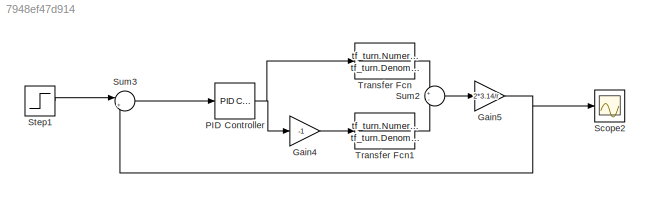
MODEL slx_7948ef47d914
KIND model
CONFIG AbsTol = auto
CONFIG EnableMultiTasking = off
CONFIG FixedStep = auto
CONFIG MaxStep = auto
CONFIG MinStep = auto
CONFIG RelTol = 1e-3
CONFIG SampleTimeConstraint = Unconstrained
CONFIG SolverName = VariableStepAuto
CONFIG StartTime = 0.0
CONFIG StopTime = 5
BLOCK [Gain] Gain4
  Gain = -1
BLOCK [Gain] Gain5
  Gain = 2*3.14/r
BLOCK [Reference] PID Controller  REF=pid_lib/PID Controller
  Ports = [1, 1]
  SourceBlock = pid_lib/PID Controller
  SourceProductBaseCode = SL
  SourceType = PID 1dof
BLOCK [Scope] Scope2
  Floating = off
  NumInputPorts = 1
  Ports = [1]
  ScopeSpecificationString = Simulink.scopes.TimeScopeBlockCfg('CurrentConfiguration', extmgr.ConfigurationSet(extmgr.Configuration('Core','General UI',true),extmgr.Configuration('Core','Source UI',true),extmgr.Configuration('Sources','WiredSimulink',true,'DataLoggingVariableName','ScopeData1'),extmgr.Configuration('Visuals','Time Domain',true,'SerializedDisplays',{struct('MinYLimReal','-0.15065','MaxYLimReal','1.35585','YLab...<+1393ch>
BLOCK [Step] Step1
  SampleTime = 0
BLOCK [Sum] Sum2
  Inputs = +-
  Ports = [2, 1]
BLOCK [Sum] Sum3
  Inputs = |+-
  Ports = [2, 1]
BLOCK [TransferFcn] Transfer Fcn
  Denominator = tf_turn.Denominator{1,1}
  Numerator = tf_turn.Numerator{1,1}
BLOCK [TransferFcn] Transfer Fcn1
  Denominator = tf_turn.Denominator{1,1}
  Numerator = tf_turn.Numerator{1,1}
LINE Gain4:1 -> Transfer Fcn1:1
NET Gain5:1 -> Scope2:1, Sum3:2
NET PID Controller:1 -> Gain4:1, Transfer Fcn:1
LINE Step1:1 -> Sum3:1
LINE Sum2:1 -> Gain5:1
LINE Sum3:1 -> PID Controller:1
LINE Transfer Fcn1:1 -> Sum2:2
LINE Transfer Fcn:1 -> Sum2:1
note: NET lines group one-source signal fan-out (src -> all destinations, sorted); 1:1 wires keep LINE
